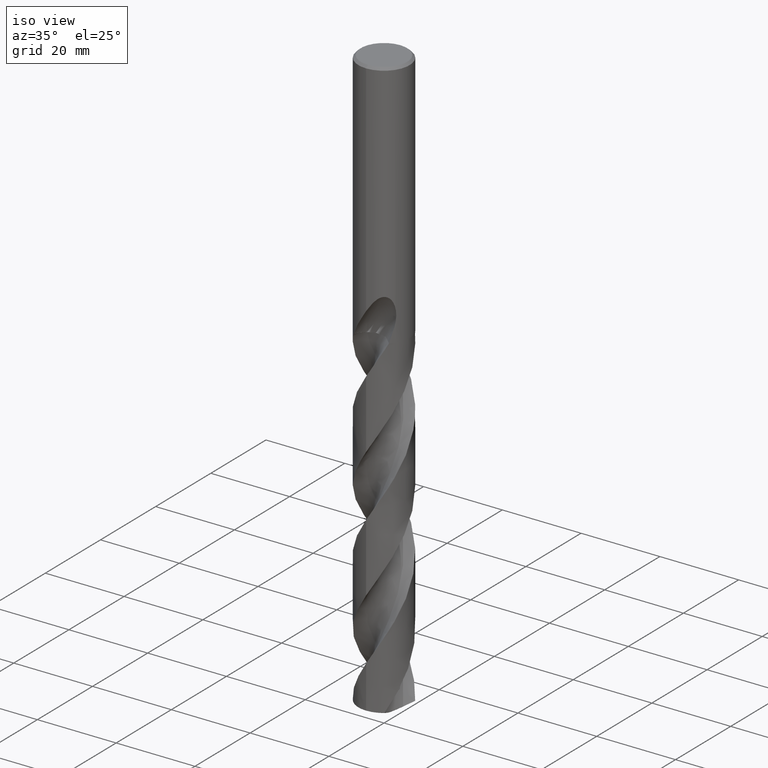
[diagram: clean part render]
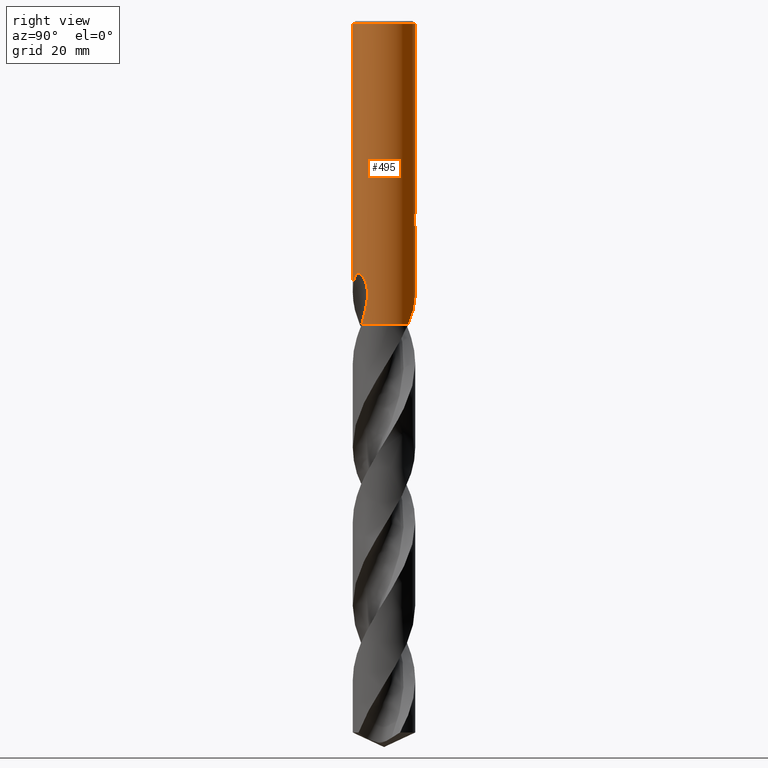
[diagram: tour spotlight — one face highlighted and labeled with its STEP entity id]
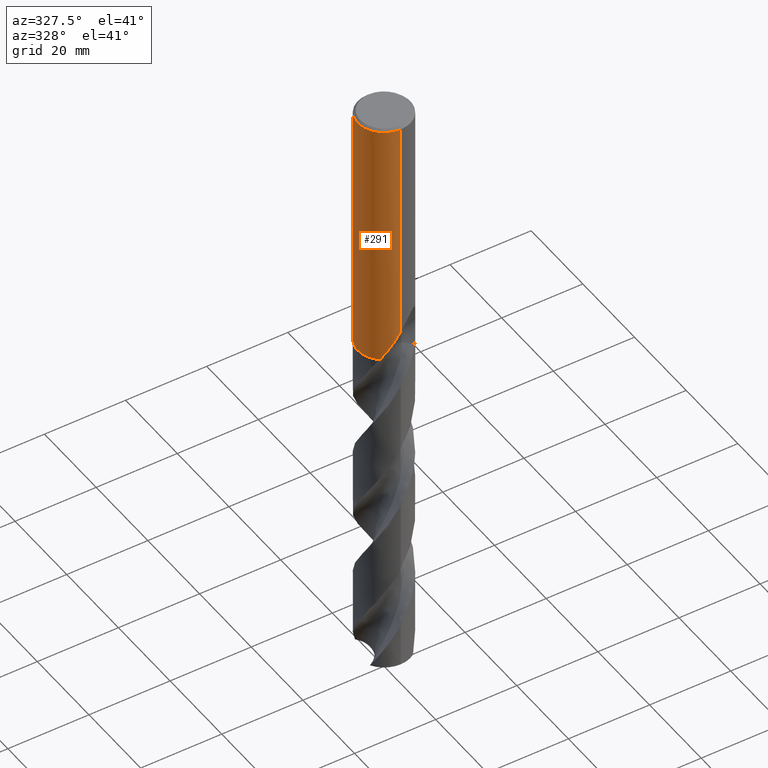
[diagram: tour spotlight — one face highlighted and labeled with its STEP entity id]
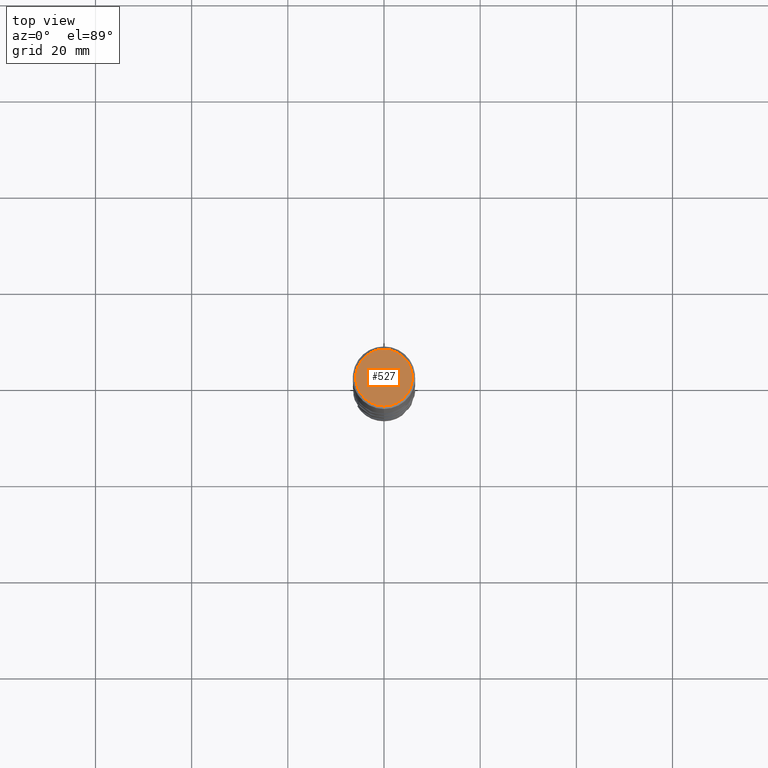
[diagram: tour spotlight — one face highlighted and labeled with its STEP entity id]
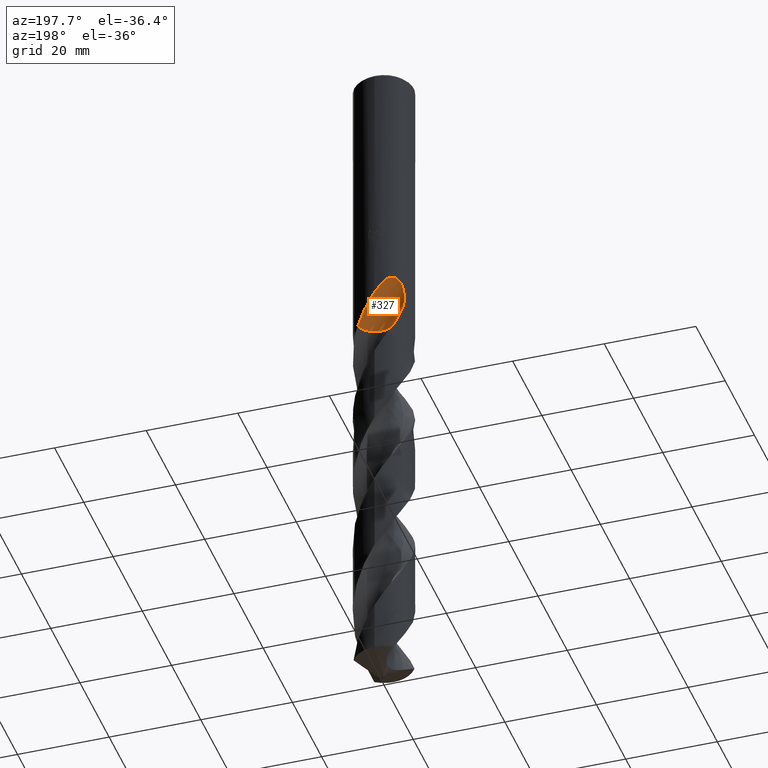
[diagram: tour spotlight — one face highlighted and labeled with its STEP entity id]
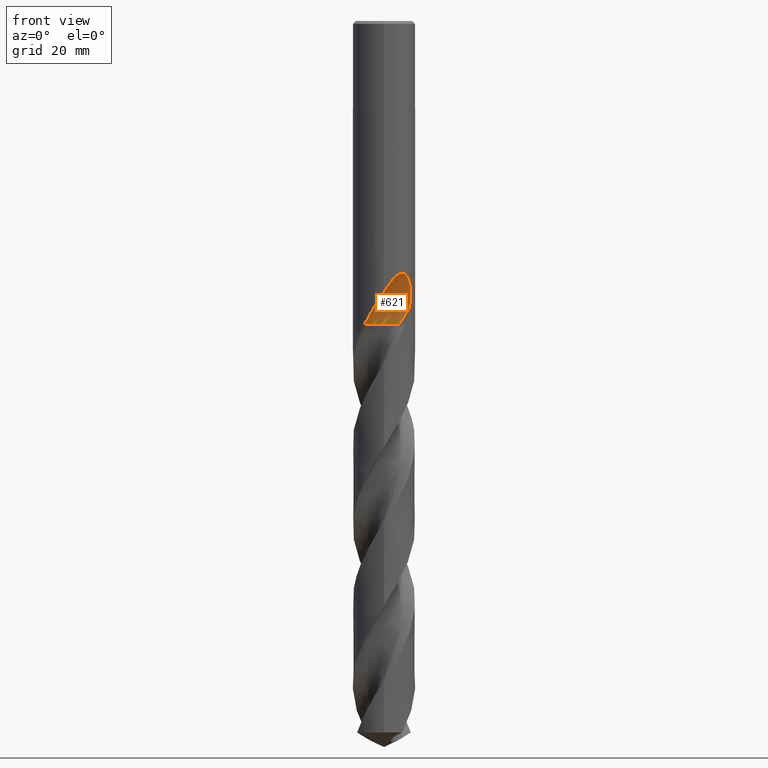
[diagram: tour spotlight — one face highlighted and labeled with its STEP entity id]
A machine part: a face-by-face anatomy tour. The part has 42 B-rep faces; the first image is the clean iso view, then the 5 largest visible faces are spotlighted one at a time (largest first), each with its STEP entity span.

Face 1 — right view, entity #495. In plain terms, the highlighted cylindrical surface (edge-blend (fillet) strip) has radius 6.5 mm, axis along (-0, -0, 1).
Definition (entity closure, byte-faithful):
#289=EDGE_CURVE('',#379,#533,#767,.T.);
#293=EDGE_CURVE('',#543,#617,#772,.T.);
#343=VERTEX_POINT('',#828);
#345=VERTEX_POINT('',#830);
#379=VERTEX_POINT('',#867);
#391=EDGE_CURVE('',#619,#343,#879,.T.);
#397=EDGE_CURVE('',#513,#533,#886,.T.);
#403=EDGE_CURVE('',#379,#659,#892,.T.);
#409=EDGE_CURVE('',#679,#465,#898,.T.);
#427=EDGE_CURVE('',#573,#465,#919,.T.);
#435=EDGE_CURVE('',#659,#581,#928,.T.);
#465=VERTEX_POINT('',#961);
#469=VERTEX_POINT('',#965);
#477=VERTEX_POINT('',#973);
#495=ADVANCED_FACE('',(#995),#996,.T.);
#513=VERTEX_POINT('',#1015);
#525=EDGE_CURVE('',#469,#619,#1027,.T.);
#533=VERTEX_POINT('',#1036);
#543=VERTEX_POINT('',#1046);
#555=EDGE_CURVE('',#617,#477,#1058,.T.);
#569=EDGE_CURVE('',#477,#469,#1074,.T.);
#573=VERTEX_POINT('',#1078);
#575=EDGE_CURVE('',#345,#543,#1080,.T.);
#581=VERTEX_POINT('',#1087);
#615=EDGE_CURVE('',#573,#345,#1124,.T.);
#617=VERTEX_POINT('',#1126);
#619=VERTEX_POINT('',#1128);
#625=EDGE_CURVE('',#513,#343,#1135,.T.);
#647=EDGE_CURVE('',#679,#581,#1159,.T.);
#659=VERTEX_POINT('',#1172);
#679=VERTEX_POINT('',#1193);
#767=LINE('',#1466,#1467);
#772=LINE('',#1473,#1474);
#828=CARTESIAN_POINT('',(-9.11185746623598E-016,6.5,-41.0232688117743));
#830=CARTESIAN_POINT('',(0.29010312703583,6.49352294026009,-42.9998328990228));
#867=CARTESIAN_POINT('',(1.99302628166222E-012,-6.5,-56.2956537273547));
#879=B_SPLINE_CURVE_WITH_KNOTS('',3,(#3031,#3032,#3033,#3034,#3035,#3036,#3037,#3038,#3039,#3040,#3041,#3042,#3043,#3044,#3045,#3046,#3047,#3048,#3049,#3050,#3051,#3052,#3053,#3054,#3055,#3056,#3057),.UNSPECIFIED.,.F.,.F.,(4,2,3,2,2,2,2,2,2,2,2,2,4),(-0.54211042130285,-0.271055210651425,0.0,0.271055210651425,0.54211042130285,0.813503489476229,1.08489655764961,1.3557263789018,1.62655620015399,1.8975522953862,2.1685483906184,2.43954448585061,2.71054058108282),.UNSPECIFIED.);
#886=CIRCLE('',#3871,6.5);
#892=B_SPLINE_CURVE_WITH_KNOTS('',3,(#4037,#4038,#4039,#4040,#4041,#4042,#4043,#4044,#4045,#4046,#4047,#4048,#4049,#4050,#4051,#4052,#4053,#4054,#4055,#4056,#4057,#4058,#4059,#4060,#4061,#4062,#4063,#4064,#4065,#4066),.UNSPECIFIED.,.F.,.F.,(4,2,2,2,2,2,2,2,2,2,2,2,2,2,4),(0.0,3.1809903277017,4.91954110289934,6.49477439006094,8.32513545678344,10.5235474923492,12.4266998005783,13.2899860023691,13.9209877630368,14.5181294194268,15.2756834481811,16.3840533178416,17.9597049006615,18.9904870322061,20.0737581101821),.UNSPECIFIED.);
#898=B_SPLINE_CURVE_WITH_KNOTS('',3,(#4073,#4074,#4075,#4076,#4077,#4078,#4079,#4080,#4081,#4082,#4083,#4084,#4085,#4086,#4087,#4088,#4089,#4090,#4091,#4092,#4093,#4094,#4095,#4096,#4097,#4098,#4099,#4100,#4101,#4102),.UNSPECIFIED.,.F.,.F.,(4,2,2,2,2,2,2,2,2,2,2,2,2,2,4),(0.0,3.18099032770167,4.91954110289936,6.49477439006156,8.32513545678518,10.5235474923522,12.4266998005826,13.2899860023737,13.9209877630417,14.518129419432,15.2756834481869,16.3840533178474,17.9597049006645,18.9904870322067,20.0737581101801),.UNSPECIFIED.);
#919=LINE('',#4930,#4931);
#928=B_SPLINE_CURVE_WITH_KNOTS('',3,(#4941,#4942,#4943,#4944),.UNSPECIFIED.,.F.,.F.,(4,4),(0.0,3.7304180468819),.UNSPECIFIED.);
#961=CARTESIAN_POINT('',(-1.98636494351447E-012,6.5,-56.2956537273547));
#965=CARTESIAN_POINT('',(1.33721006514658,6.36096448989229,-40.5150484364821));
#973=CARTESIAN_POINT('',(1.33721006514658,6.36096448989229,-42.2901657003257));
#995=FACE_OUTER_BOUND('',#5640,.T.);
#996=CYLINDRICAL_SURFACE('',#5641,6.5);
#1015=CARTESIAN_POINT('',(0.0,6.5,-0.600000000000001));
#1027=B_SPLINE_CURVE_WITH_KNOTS('',3,(#5823,#5824,#5825,#5826,#5827,#5828,#5829,#5830,#5831,#5832),.UNSPECIFIED.,.F.,.F.,(4,2,2,2,4),(0.616344110712948,0.924516166069422,1.2326882214259,1.54070376264946,1.84871930387303),.UNSPECIFIED.);
#1036=CARTESIAN_POINT('',(7.95994129984545E-016,-6.5,-0.600000000000001));
#1046=CARTESIAN_POINT('',(0.873560781758957,6.44103187079312,-41.3198931596091));
#1058=B_SPLINE_CURVE_WITH_KNOTS('',3,(#6175,#6176,#6177,#6178,#6179,#6180,#6181,#6182,#6183,#6184),.UNSPECIFIED.,.F.,.F.,(4,2,2,2,4),(8.01269570169445,8.32071123244799,8.62872676320153,8.93689880790409,9.24507085260666),.UNSPECIFIED.);
#1074=LINE('',#6208,#6209);
#1078=CARTESIAN_POINT('',(-2.04373622210448E-015,6.5,-43.0310253601033));
#1080=ELLIPSE('',#6218,19.8119647269035,6.5);
#1087=CARTESIAN_POINT('',(4.51932277904949,-4.67180068268804,-63.2));
#1124=B_SPLINE_CURVE_WITH_KNOTS('',3,(#6454,#6455,#6456,#6457,#6458,#6459,#6460,#6461,#6462,#6463,#6464,#6465,#6466,#6467,#6468,#6469),.UNSPECIFIED.,.F.,.F.,(4,2,2,2,2,2,2,4),(5.85532773425054,6.16353434805732,6.47181707900603,6.78009980995473,7.08838254090343,7.39666527185213,7.70468082950864,8.01269638716514),.UNSPECIFIED.);
#1126=CARTESIAN_POINT('',(0.873560781758956,6.44103187079312,-42.7587351791531));
#1128=CARTESIAN_POINT('',(0.799431726384364,6.45065182092865,-40.000000276873));
#1135=LINE('',#6496,#6497);
#1159=CIRCLE('',#6697,6.5);
#1172=CARTESIAN_POINT('',(5.28867406144991,-3.77887902316904,-59.6457285140225));
#1193=CARTESIAN_POINT('',(4.1395188834721,5.01142528761808,-63.2));
#1466=CARTESIAN_POINT('',(7.95994129984545E-016,-6.5,-54.1));
#1467=VECTOR('',#7091,1.0);
#1473=CARTESIAN_POINT('',(0.873560781758957,6.44103187079312,-42.0393141693811));
#1474=VECTOR('',#7111,1.0);
#3031=CARTESIAN_POINT('',(0.665009948651651,6.4658921865582,-39.8134834270877));
#3032=CARTESIAN_POINT('',(0.728709726292574,6.45934073400751,-39.8772239413302));
#3033=CARTESIAN_POINT('',(0.783978164406718,6.45265410678404,-39.9579597688487));
#3034=CARTESIAN_POINT('',(0.857326696044928,6.4433188442987,-40.13498879339));
#3035=CARTESIAN_POINT('',(0.875400981188567,6.44078202721798,-40.231290275703));
#3036=CARTESIAN_POINT('',(0.875400981188567,6.44078202721798,-40.3216420125868));
#3037=CARTESIAN_POINT('',(0.875400981188567,6.44078202721798,-40.4119937494706));
#3038=CARTESIAN_POINT('',(0.857326696044926,6.4433188442987,-40.5082952317835));
#3039=CARTESIAN_POINT('',(0.783978164406714,6.45265410678405,-40.6853242563249));
#3040=CARTESIAN_POINT('',(0.728709726292575,6.45934073400751,-40.7660600838434));
#3041=CARTESIAN_POINT('',(0.601230772245541,6.47245180518516,-40.8936205618698));
#3042=CARTESIAN_POINT('',(0.520453950443569,6.47973811881178,-40.9489615363319));
#3043=CARTESIAN_POINT('',(0.343325516131627,6.49153340841804,-41.0224124046868));
#3044=CARTESIAN_POINT('',(0.246964513397228,6.49593660135622,-41.0405166027747));
#3045=CARTESIAN_POINT('',(0.0662759631326997,6.50028902145877,-41.0405166027747));
#3046=CARTESIAN_POINT('',(-0.0299983134455207,6.50053398901413,-41.0224795578137));
#3047=CARTESIAN_POINT('',(-0.207079459605581,6.49730406696753,-40.9491414268958));
#3048=CARTESIAN_POINT('',(-0.287889157188533,6.49393581801358,-40.8938425115824));
#3049=CARTESIAN_POINT('',(-0.415531205717859,6.48701945479233,-40.7662527322646));
#3050=CARTESIAN_POINT('',(-0.470872911994409,6.48302662438309,-40.6854309991359));
#3051=CARTESIAN_POINT('',(-0.544282685037442,6.47727657862164,-40.5082939470613));
#3052=CARTESIAN_POINT('',(-0.562348199187247,6.4756285025371,-40.4119740443309));
#3053=CARTESIAN_POINT('',(-0.562348199187247,6.4756285025371,-40.2313099808427));
#3054=CARTESIAN_POINT('',(-0.544282685037442,6.47727657862164,-40.1349900781123));
#3055=CARTESIAN_POINT('',(-0.470872911994409,6.48302662438309,-39.9578530260376));
#3056=CARTESIAN_POINT('',(-0.415531205717859,6.48701945479233,-39.877031292909));
#3057=CARTESIAN_POINT('',(-0.351690596240694,6.49047869763979,-39.8132168260577));
#3871=AXIS2_PLACEMENT_3D('',#7251,#7252,#7253);
#4037=CARTESIAN_POINT('',(-4.1395188834721,-5.01142528761807,-63.2));
#4038=CARTESIAN_POINT('',(-3.710939633576,-5.36543872614874,-62.297063539087));
#4039=CARTESIAN_POINT('',(-3.21836817802651,-5.68003057835878,-61.4550521977624));
#4040=CARTESIAN_POINT('',(-2.35947274064264,-6.06577304764526,-60.0481972438205));
#4041=CARTESIAN_POINT('',(-2.05022107642267,-6.1767994809102,-59.5529036657231));
#4042=CARTESIAN_POINT('',(-1.45146878546433,-6.3427494641817,-58.5940091759847));
#4043=CARTESIAN_POINT('',(-1.16463030583807,-6.40137932375164,-58.1348599729351));
#4044=CARTESIAN_POINT('',(-0.543691685916853,-6.48597261458285,-57.1452006731947));
#4045=CARTESIAN_POINT('',(-0.204391774594261,-6.50580165423901,-56.6069260604781));
#4046=CARTESIAN_POINT('',(0.549067501043529,-6.48981063316087,-55.4555124164235));
#4047=CARTESIAN_POINT('',(0.995820184753446,-6.44070008926964,-54.8003467560075));
#4048=CARTESIAN_POINT('',(1.85687690708439,-6.24260250905468,-53.7208203866681));
#4049=CARTESIAN_POINT('',(2.33287475104792,-6.09187146380076,-53.194524331624));
#4050=CARTESIAN_POINT('',(3.05352277581435,-5.7435516742493,-52.7013938945918));
#4051=CARTESIAN_POINT('',(3.29221786463922,-5.61196846664082,-52.5794492883455));
#4052=CARTESIAN_POINT('',(3.71047511146386,-5.34103532698406,-52.4857924847674));
#4053=CARTESIAN_POINT('',(3.88202985549943,-5.2176477120273,-52.484061499913));
#4054=CARTESIAN_POINT('',(4.20156306436699,-4.96349427750833,-52.5661037370722));
#4055=CARTESIAN_POINT('',(4.34131224901716,-4.8407419994764,-52.6430122148751));
#4056=CARTESIAN_POINT('',(4.62570545946773,-4.5717360011083,-52.883637898744));
#4057=CARTESIAN_POINT('',(4.75727913732758,-4.43232908248179,-53.0612951460687));
#4058=CARTESIAN_POINT('',(5.02678484231789,-4.12792412587944,-53.5477724665437));
#4059=CARTESIAN_POINT('',(5.15560071068614,-3.96215569977283,-53.9085961541457));
#4060=CARTESIAN_POINT('',(5.39782003744107,-3.62931626605978,-54.9181189296788));
#4061=CARTESIAN_POINT('',(5.48537824868719,-3.48755829802703,-55.6370810112657));
#4062=CARTESIAN_POINT('',(5.52867094775428,-3.4183096248535,-56.9675409909747));
#4063=CARTESIAN_POINT('',(5.51846664930011,-3.43522913776718,-57.4972929709121));
#4064=CARTESIAN_POINT('',(5.44647300344412,-3.5483308057084,-58.5724201728284));
#4065=CARTESIAN_POINT('',(5.38220445249631,-3.64797995229338,-59.1137490490913));
#4066=CARTESIAN_POINT('',(5.28867406144991,-3.77887902316904,-59.6457285140225));
#4073=CARTESIAN_POINT('',(4.1395188834721,5.01142528761808,-63.2));
#4074=CARTESIAN_POINT('',(3.710939633576,5.36543872614874,-62.297063539087));
#4075=CARTESIAN_POINT('',(3.21836817802653,5.68003057835878,-61.4550521977624));
#4076=CARTESIAN_POINT('',(2.35947274064261,6.06577304764528,-60.0481972438205));
#4077=CARTESIAN_POINT('',(2.05022107642261,6.17679948091022,-59.552903665723));
#4078=CARTESIAN_POINT('',(1.45146878546427,6.34274946418171,-58.5940091759847));
#4079=CARTESIAN_POINT('',(1.16463030583795,6.40137932375165,-58.1348599729349));
#4080=CARTESIAN_POINT('',(0.543691685916903,6.48597261458283,-57.1452006731948));
#4081=CARTESIAN_POINT('',(0.204391774594284,6.50580165423901,-56.6069260604781));
#4082=CARTESIAN_POINT('',(-0.54906750104354,6.48981063316087,-55.4555124164234));
#4083=CARTESIAN_POINT('',(-0.995820184753451,6.44070008926964,-54.8003467560075));
#4084=CARTESIAN_POINT('',(-1.85687690708442,6.24260250905467,-53.7208203866681));
#4085=CARTESIAN_POINT('',(-2.33287475104792,6.09187146380075,-53.194524331624));
#4086=CARTESIAN_POINT('',(-3.05352277581429,5.74355167424932,-52.7013938945919));
#4087=CARTESIAN_POINT('',(-3.2922178646392,5.61196846664083,-52.5794492883455));
#4088=CARTESIAN_POINT('',(-3.7104751114639,5.34103532698404,-52.4857924847674));
#4089=CARTESIAN_POINT('',(-3.88202985549944,5.21764771202729,-52.484061499913));
#4090=CARTESIAN_POINT('',(-4.201563064367,4.96349427750833,-52.5661037370722));
#4091=CARTESIAN_POINT('',(-4.34131224901716,4.84074199947639,-52.6430122148751));
#4092=CARTESIAN_POINT('',(-4.62570545946773,4.57173600110829,-52.883637898744));
#4093=CARTESIAN_POINT('',(-4.75727913732759,4.43232908248176,-53.0612951460687));
#4094=CARTESIAN_POINT('',(-5.02678484231772,4.12792412587962,-53.5477724665434));
#4095=CARTESIAN_POINT('',(-5.15560071068604,3.96215569977298,-53.9085961541453));
#4096=CARTESIAN_POINT('',(-5.39782003744096,3.62931626605994,-54.9181189296784));
#4097=CARTESIAN_POINT('',(-5.48537824868717,3.48755829802706,-55.6370810112651));
#4098=CARTESIAN_POINT('',(-5.52867094775428,3.41830962485349,-56.9675409909747));
#4099=CARTESIAN_POINT('',(-5.5184666493001,3.43522913776717,-57.4972929709121));
#4100=CARTESIAN_POINT('',(-5.44647300344411,3.5483308057084,-58.5724201728284));
#4101=CARTESIAN_POINT('',(-5.3822044524963,3.64797995229339,-59.1137490490913));
#4102=CARTESIAN_POINT('',(-5.28867406144991,3.77887902316904,-59.6457285140225));
#4930=CARTESIAN_POINT('',(-7.95994129984545E-016,6.5,-54.1));
#4931=VECTOR('',#7288,1.0);
#4941=CARTESIAN_POINT('',(5.28867406150252,-3.77887902309539,-59.6457285140515));
#4942=CARTESIAN_POINT('',(5.07941455452147,-4.07174506086206,-60.8359655720665));
#4943=CARTESIAN_POINT('',(4.82726541506561,-4.37390865686911,-62.0332515341914));
#4944=CARTESIAN_POINT('',(4.51932277904949,-4.67180068268804,-63.2));
#5640=EDGE_LOOP('',(#7363,#7364,#7365,#7366,#7367,#7368,#7369,#7370,#7371,#7372,#7373,#7374,#7375,#7376,#7377));
#5641=AXIS2_PLACEMENT_3D('',#7378,#7379,#7380);
#5823=CARTESIAN_POINT('',(1.47581402211555,6.33024272616202,-40.7781060232488));
#5824=CARTESIAN_POINT('',(1.43418815261168,6.3399472540676,-40.6778456272751));
#5825=CARTESIAN_POINT('',(1.38242091432189,6.35158520431181,-40.5818267913258));
#5826=CARTESIAN_POINT('',(1.26295439993568,6.37641500965412,-40.4043631628891));
#5827=CARTESIAN_POINT('',(1.19524628781874,6.3895808554363,-40.3229206806908));
#5828=CARTESIAN_POINT('',(1.05109906548503,6.41486886155944,-40.1788042117664));
#5829=CARTESIAN_POINT('',(0.969673250882074,6.42788863482793,-40.111131259145));
#5830=CARTESIAN_POINT('',(0.792233398880047,6.45216124696694,-39.991718140152));
#5831=CARTESIAN_POINT('',(0.696221663732805,6.46339002425831,-39.9399696632591));
#5832=CARTESIAN_POINT('',(0.595971942858856,6.47262060091004,-39.898361194347));
#6175=CARTESIAN_POINT('',(0.595971965097509,6.4726205988624,-42.9068529263742));
#6176=CARTESIAN_POINT('',(0.696221682542838,6.46339002217901,-42.8652444588747));
#6177=CARTESIAN_POINT('',(0.792233414403679,6.45216124501865,-42.8134959837401));
#6178=CARTESIAN_POINT('',(0.969673260332412,6.42788863335994,-42.6940828688028));
#6179=CARTESIAN_POINT('',(1.05109907214846,6.41486886043917,-42.6264099184791));
#6180=CARTESIAN_POINT('',(1.19524628950879,6.38958085509109,-42.4822934544795));
#6181=CARTESIAN_POINT('',(1.26295439927459,6.37641500976475,-42.4008509750874));
#6182=CARTESIAN_POINT('',(1.38242090951475,6.35158520533769,-42.2233873527647));
#6183=CARTESIAN_POINT('',(1.43418814600924,6.33994725555108,-42.1273685201235));
#6184=CARTESIAN_POINT('',(1.47581401406897,6.33024272803797,-42.0271081276057));
#6208=CARTESIAN_POINT('',(1.33721006514658,6.36096448989229,-41.4026070684039));
#6209=VECTOR('',#7431,1.0);
#6218=AXIS2_PLACEMENT_3D('',#7433,#7434,#7435);
#6454=CARTESIAN_POINT('',(-1.37950770214519,6.35192557416427,-42.311977853661));
#6455=CARTESIAN_POINT('',(-1.3198120832303,6.36489023582954,-42.4006738357836));
#6456=CARTESIAN_POINT('',(-1.25215515178726,6.37867321946998,-42.4820783377272));
#6457=CARTESIAN_POINT('',(-1.10808556116195,6.40527232864873,-42.6261797974425));
#6458=CARTESIAN_POINT('',(-1.02667285990483,6.41903263531005,-42.6938711892567));
#6459=CARTESIAN_POINT('',(-0.849249329365212,6.44490595051211,-42.8133273500683));
#6460=CARTESIAN_POINT('',(-0.753240671502784,6.45699490652302,-42.8651005524199));
#6461=CARTESIAN_POINT('',(-0.552718842922963,6.47724143532109,-42.9483710397602));
#6462=CARTESIAN_POINT('',(-0.448038129319197,6.48539911268241,-42.979934259357));
#6463=CARTESIAN_POINT('',(-0.237240962078234,6.49652649821576,-43.0213901577397));
#6464=CARTESIAN_POINT('',(-0.131122101406942,6.49948973375692,-43.0312723335086));
#6465=CARTESIAN_POINT('',(0.0743087057987416,6.50038612126611,-43.0312723335086));
#6466=CARTESIAN_POINT('',(0.180360919586034,6.49835291859509,-43.0214069746895));
#6467=CARTESIAN_POINT('',(0.391066679248296,6.48908218227415,-42.9799966346832));
#6468=CARTESIAN_POINT('',(0.495722511671418,6.48185115549095,-42.9484618321907));
#6469=CARTESIAN_POINT('',(0.595972237509441,6.47262057377983,-42.9068533611083));
#6496=CARTESIAN_POINT('',(-7.95994129984545E-016,6.5,-54.1));
#6497=VECTOR('',#7505,1.0);
#6697=AXIS2_PLACEMENT_3D('',#7544,#7545,#7546);
#7091=DIRECTION('',(-0.0,-0.0,1.0));
#7111=DIRECTION('',(0.0,0.0,-1.0));
#7251=CARTESIAN_POINT('',(0.0,0.0,-0.600000000000001));
#7252=DIRECTION('',(0.0,0.0,-1.0));
#7253=DIRECTION('',(0.0,1.0,0.0));
#7288=DIRECTION('',(0.0,0.0,-1.0));
#7363=ORIENTED_EDGE('',*,*,#625,.F.);
#7364=ORIENTED_EDGE('',*,*,#397,.T.);
#7365=ORIENTED_EDGE('',*,*,#289,.F.);
#7366=ORIENTED_EDGE('',*,*,#403,.T.);
#7367=ORIENTED_EDGE('',*,*,#435,.T.);
#7368=ORIENTED_EDGE('',*,*,#647,.F.);
#7369=ORIENTED_EDGE('',*,*,#409,.T.);
#7370=ORIENTED_EDGE('',*,*,#427,.F.);
#7371=ORIENTED_EDGE('',*,*,#615,.T.);
#7372=ORIENTED_EDGE('',*,*,#575,.T.);
#7373=ORIENTED_EDGE('',*,*,#293,.T.);
#7374=ORIENTED_EDGE('',*,*,#555,.T.);
#7375=ORIENTED_EDGE('',*,*,#569,.T.);
#7376=ORIENTED_EDGE('',*,*,#525,.T.);
#7377=ORIENTED_EDGE('',*,*,#391,.T.);
#7378=CARTESIAN_POINT('',(0.0,0.0,-54.1));
#7379=DIRECTION('',(-0.0,-0.0,1.0));
#7380=DIRECTION('',(0.0,1.0,0.0));
#7431=DIRECTION('',(-0.0,-0.0,1.0));
#7433=CARTESIAN_POINT('',(0.0,0.0,-43.8351219173269));
#7434=DIRECTION('',(0.944648353914092,0.0,-0.328084573619969));
#7435=DIRECTION('',(0.328084573619969,-0.0,0.944648353914092));
#7505=DIRECTION('',(0.0,0.0,-1.0));
#7544=CARTESIAN_POINT('',(0.0,0.0,-63.2));
#7545=DIRECTION('',(0.0,0.0,-1.0));
#7546=DIRECTION('',(0.0,1.0,0.0));

Face 2 — auxiliary view, entity #291. In plain terms, the highlighted cylindrical surface (edge-blend (fillet) strip) has radius 6.5 mm, axis along (-0, -0, 1).
Definition (entity closure, byte-faithful):
#285=VERTEX_POINT('',#763);
#289=EDGE_CURVE('',#379,#533,#767,.T.);
#291=ADVANCED_FACE('',(#769),#770,.T.);
#319=EDGE_CURVE('',#609,#553,#799,.T.);
#325=EDGE_CURVE('',#431,#505,#806,.T.);
#333=EDGE_CURVE('',#343,#585,#816,.T.);
#343=VERTEX_POINT('',#828);
#377=VERTEX_POINT('',#865);
#379=VERTEX_POINT('',#867);
#407=VERTEX_POINT('',#896);
#427=EDGE_CURVE('',#573,#465,#919,.T.);
#431=VERTEX_POINT('',#923);
#465=VERTEX_POINT('',#961);
#467=EDGE_CURVE('',#465,#609,#963,.T.);
#501=VERTEX_POINT('',#1002);
#505=VERTEX_POINT('',#1006);
#513=VERTEX_POINT('',#1015);
#519=EDGE_CURVE('',#377,#379,#1021,.T.);
#533=VERTEX_POINT('',#1036);
#553=VERTEX_POINT('',#1056);
#573=VERTEX_POINT('',#1078);
#585=VERTEX_POINT('',#1092);
#599=EDGE_CURVE('',#407,#501,#1106,.T.);
#609=VERTEX_POINT('',#1117);
#623=EDGE_CURVE('',#505,#407,#1133,.T.);
#625=EDGE_CURVE('',#513,#343,#1135,.T.);
#639=EDGE_CURVE('',#501,#285,#1151,.T.);
#641=EDGE_CURVE('',#285,#573,#1153,.T.);
#661=EDGE_CURVE('',#533,#513,#1174,.T.);
#705=EDGE_CURVE('',#585,#431,#1221,.T.);
#711=EDGE_CURVE('',#377,#553,#1228,.T.);
#763=CARTESIAN_POINT('',(-1.337052752443,6.36099755833821,-42.3720803908795));
#767=LINE('',#1466,#1467);
#769=FACE_OUTER_BOUND('',#1469,.T.);
#770=CYLINDRICAL_SURFACE('',#1470,6.5);
#799=B_SPLINE_CURVE_WITH_KNOTS('',3,(#1715,#1716,#1717,#1718),.UNSPECIFIED.,.F.,.F.,(4,4),(0.0,3.73041804688222),.UNSPECIFIED.);
#806=CIRCLE('',#1878,6.5);
#816=B_SPLINE_CURVE_WITH_KNOTS('',3,(#1892,#1893,#1894,#1895,#1896,#1897,#1898,#1899,#1900,#1901,#1902,#1903,#1904,#1905,#1906,#1907,#1908,#1909,#1910,#1911,#1912,#1913,#1914,#1915,#1916,#1917,#1918),.UNSPECIFIED.,.F.,.F.,(4,2,3,2,2,2,2,2,2,2,2,2,4),(-0.54211042130285,-0.271055210651425,0.0,0.271055210651425,0.54211042130285,0.813503489476229,1.08489655764961,1.3557263789018,1.62655620015399,1.8975522953862,2.1685483906184,2.43954448585061,2.71054058108282),.UNSPECIFIED.);
#828=CARTESIAN_POINT('',(-9.11185746623598E-016,6.5,-41.0232688117743));
#865=CARTESIAN_POINT('',(-4.1395188834721,-5.01142528761808,-63.2));
#867=CARTESIAN_POINT('',(1.99302628166222E-012,-6.5,-56.2956537273547));
#896=CARTESIAN_POINT('',(-3.83043648745823E-016,6.5,-41.5000801551881));
#919=LINE('',#4930,#4931);
#923=CARTESIAN_POINT('',(-0.562333990228013,6.47562973643755,-40.3171221986971));
#961=CARTESIAN_POINT('',(-1.98636494351447E-012,6.5,-56.2956537273547));
#963=B_SPLINE_CURVE_WITH_KNOTS('',3,(#5004,#5005,#5006,#5007,#5008,#5009,#5010,#5011,#5012,#5013,#5014,#5015,#5016,#5017,#5018,#5019,#5020,#5021,#5022,#5023,#5024,#5025,#5026,#5027,#5028,#5029,#5030,#5031,#5032,#5033),.UNSPECIFIED.,.F.,.F.,(4,2,2,2,2,2,2,2,2,2,2,2,2,2,4),(0.0,3.18099032770167,4.91954110289936,6.49477439006156,8.32513545678518,10.5235474923522,12.4266998005826,13.2899860023737,13.9209877630417,14.518129419432,15.2756834481869,16.3840533178474,17.9597049006645,18.9904870322067,20.0737581101801),.UNSPECIFIED.);
#1002=CARTESIAN_POINT('',(-9.74620776171345E-016,6.5,-41.7128911336578));
#1006=CARTESIAN_POINT('',(-1.0350734039088,6.41705719535993,-40.3171221986971));
#1015=CARTESIAN_POINT('',(0.0,6.5,-0.600000000000001));
#1021=B_SPLINE_CURVE_WITH_KNOTS('',3,(#5712,#5713,#5714,#5715,#5716,#5717,#5718,#5719,#5720,#5721,#5722,#5723,#5724,#5725,#5726,#5727,#5728,#5729,#5730,#5731,#5732,#5733,#5734,#5735,#5736,#5737,#5738,#5739,#5740,#5741),.UNSPECIFIED.,.F.,.F.,(4,2,2,2,2,2,2,2,2,2,2,2,2,2,4),(0.0,3.1809903277017,4.91954110289934,6.49477439006094,8.32513545678344,10.5235474923492,12.4266998005783,13.2899860023691,13.9209877630368,14.5181294194268,15.2756834481811,16.3840533178416,17.9597049006615,18.9904870322061,20.0737581101821),.UNSPECIFIED.);
#1036=CARTESIAN_POINT('',(7.95994129984545E-016,-6.5,-0.600000000000001));
#1056=CARTESIAN_POINT('',(-4.51932277904948,4.67180068268804,-63.2));
#1078=CARTESIAN_POINT('',(-2.04373622210448E-015,6.5,-43.0310253601033));
#1092=CARTESIAN_POINT('',(-0.486378944383043,6.481777188585,-40.6432837483006));
#1106=LINE('',#6275,#6276);
#1117=CARTESIAN_POINT('',(-5.28867406144991,3.77887902316904,-59.6457285140225));
#1133=B_SPLINE_CURVE_WITH_KNOTS('',3,(#6480,#6481,#6482,#6483,#6484,#6485,#6486,#6487,#6488,#6489,#6490,#6491,#6492,#6493),.UNSPECIFIED.,.F.,.F.,(4,2,2,2,2,2,4),(3.12758704882635,3.5742258103908,4.02086457195526,4.46750333351971,4.91361049915401,5.35971766478831,5.80727900250839),.UNSPECIFIED.);
#1135=LINE('',#6496,#6497);
#1151=ELLIPSE('',#6670,7.24703480827859,6.5);
#1153=B_SPLINE_CURVE_WITH_KNOTS('',3,(#6673,#6674,#6675,#6676,#6677,#6678,#6679,#6680,#6681,#6682,#6683,#6684,#6685,#6686,#6687,#6688),.UNSPECIFIED.,.F.,.F.,(4,2,2,2,2,2,2,4),(5.85532773425054,6.16353434805732,6.47181707900603,6.78009980995473,7.08838254090343,7.39666527185213,7.70468082950864,8.01269638716514),.UNSPECIFIED.);
#1174=CIRCLE('',#6715,6.5);
#1221=B_SPLINE_CURVE_WITH_KNOTS('',3,(#7020,#7021,#7022,#7023,#7024,#7025,#7026,#7027,#7028,#7029,#7030,#7031,#7032,#7033,#7034,#7035,#7036,#7037,#7038,#7039,#7040,#7041,#7042,#7043,#7044,#7045,#7046),.UNSPECIFIED.,.F.,.F.,(4,2,3,2,2,2,2,2,2,2,2,2,4),(-0.54211042130285,-0.271055210651425,0.0,0.271055210651425,0.54211042130285,0.813503489476229,1.08489655764961,1.3557263789018,1.62655620015399,1.8975522953862,2.1685483906184,2.43954448585061,2.71054058108282),.UNSPECIFIED.);
#1228=CIRCLE('',#7054,6.5);
#1466=CARTESIAN_POINT('',(7.95994129984545E-016,-6.5,-54.1));
#1467=VECTOR('',#7091,1.0);
#1469=EDGE_LOOP('',(#7093,#7094,#7095,#7096,#7097,#7098,#7099,#7100,#7101,#7102,#7103,#7104,#7105,#7106,#7107));
#1470=AXIS2_PLACEMENT_3D('',#7108,#7109,#7110);
#1715=CARTESIAN_POINT('',(-5.28867406150252,3.77887902309539,-59.6457285140515));
#1716=CARTESIAN_POINT('',(-5.07941455452145,4.07174506086208,-60.8359655720666));
#1717=CARTESIAN_POINT('',(-4.8272654150656,4.37390865686911,-62.0332515341914));
#1718=CARTESIAN_POINT('',(-4.51932277904949,4.67180068268804,-63.2));
#1878=AXIS2_PLACEMENT_3D('',#7135,#7136,#7137);
#1892=CARTESIAN_POINT('',(0.665009948651651,6.4658921865582,-39.8134834270877));
#1893=CARTESIAN_POINT('',(0.728709726292574,6.45934073400751,-39.8772239413302));
#1894=CARTESIAN_POINT('',(0.783978164406718,6.45265410678404,-39.9579597688487));
#1895=CARTESIAN_POINT('',(0.857326696044928,6.4433188442987,-40.13498879339));
#1896=CARTESIAN_POINT('',(0.875400981188567,6.44078202721798,-40.231290275703));
#1897=CARTESIAN_POINT('',(0.875400981188567,6.44078202721798,-40.3216420125868));
#1898=CARTESIAN_POINT('',(0.875400981188567,6.44078202721798,-40.4119937494706));
#1899=CARTESIAN_POINT('',(0.857326696044926,6.4433188442987,-40.5082952317835));
#1900=CARTESIAN_POINT('',(0.783978164406714,6.45265410678405,-40.6853242563249));
#1901=CARTESIAN_POINT('',(0.728709726292575,6.45934073400751,-40.7660600838434));
#1902=CARTESIAN_POINT('',(0.601230772245541,6.47245180518516,-40.8936205618698));
#1903=CARTESIAN_POINT('',(0.520453950443569,6.47973811881178,-40.9489615363319));
#1904=CARTESIAN_POINT('',(0.343325516131627,6.49153340841804,-41.0224124046868));
#1905=CARTESIAN_POINT('',(0.246964513397228,6.49593660135622,-41.0405166027747));
#1906=CARTESIAN_POINT('',(0.0662759631326997,6.50028902145877,-41.0405166027747));
#1907=CARTESIAN_POINT('',(-0.0299983134455207,6.50053398901413,-41.0224795578137));
#1908=CARTESIAN_POINT('',(-0.207079459605581,6.49730406696753,-40.9491414268958));
#1909=CARTESIAN_POINT('',(-0.287889157188533,6.49393581801358,-40.8938425115824));
#1910=CARTESIAN_POINT('',(-0.415531205717859,6.48701945479233,-40.7662527322646));
#1911=CARTESIAN_POINT('',(-0.470872911994409,6.48302662438309,-40.6854309991359));
#1912=CARTESIAN_POINT('',(-0.544282685037442,6.47727657862164,-40.5082939470613));
#1913=CARTESIAN_POINT('',(-0.562348199187247,6.4756285025371,-40.4119740443309));
#1914=CARTESIAN_POINT('',(-0.562348199187247,6.4756285025371,-40.2313099808427));
#1915=CARTESIAN_POINT('',(-0.544282685037442,6.47727657862164,-40.1349900781123));
#1916=CARTESIAN_POINT('',(-0.470872911994409,6.48302662438309,-39.9578530260376));
#1917=CARTESIAN_POINT('',(-0.415531205717859,6.48701945479233,-39.877031292909));
#1918=CARTESIAN_POINT('',(-0.351690596240694,6.49047869763979,-39.8132168260577));
#4930=CARTESIAN_POINT('',(-7.95994129984545E-016,6.5,-54.1));
#4931=VECTOR('',#7288,1.0);
#5004=CARTESIAN_POINT('',(4.1395188834721,5.01142528761808,-63.2));
#5005=CARTESIAN_POINT('',(3.710939633576,5.36543872614874,-62.297063539087));
#5006=CARTESIAN_POINT('',(3.21836817802653,5.68003057835878,-61.4550521977624));
#5007=CARTESIAN_POINT('',(2.35947274064261,6.06577304764528,-60.0481972438205));
#5008=CARTESIAN_POINT('',(2.05022107642261,6.17679948091022,-59.552903665723));
#5009=CARTESIAN_POINT('',(1.45146878546427,6.34274946418171,-58.5940091759847));
#5010=CARTESIAN_POINT('',(1.16463030583795,6.40137932375165,-58.1348599729349));
#5011=CARTESIAN_POINT('',(0.543691685916903,6.48597261458283,-57.1452006731948));
#5012=CARTESIAN_POINT('',(0.204391774594284,6.50580165423901,-56.6069260604781));
#5013=CARTESIAN_POINT('',(-0.54906750104354,6.48981063316087,-55.4555124164234));
#5014=CARTESIAN_POINT('',(-0.995820184753451,6.44070008926964,-54.8003467560075));
#5015=CARTESIAN_POINT('',(-1.85687690708442,6.24260250905467,-53.7208203866681));
#5016=CARTESIAN_POINT('',(-2.33287475104792,6.09187146380075,-53.194524331624));
#5017=CARTESIAN_POINT('',(-3.05352277581429,5.74355167424932,-52.7013938945919));
#5018=CARTESIAN_POINT('',(-3.2922178646392,5.61196846664083,-52.5794492883455));
#5019=CARTESIAN_POINT('',(-3.7104751114639,5.34103532698404,-52.4857924847674));
#5020=CARTESIAN_POINT('',(-3.88202985549944,5.21764771202729,-52.484061499913));
#5021=CARTESIAN_POINT('',(-4.201563064367,4.96349427750833,-52.5661037370722));
#5022=CARTESIAN_POINT('',(-4.34131224901716,4.84074199947639,-52.6430122148751));
#5023=CARTESIAN_POINT('',(-4.62570545946773,4.57173600110829,-52.883637898744));
#5024=CARTESIAN_POINT('',(-4.75727913732759,4.43232908248176,-53.0612951460687));
#5025=CARTESIAN_POINT('',(-5.02678484231772,4.12792412587962,-53.5477724665434));
#5026=CARTESIAN_POINT('',(-5.15560071068604,3.96215569977298,-53.9085961541453));
#5027=CARTESIAN_POINT('',(-5.39782003744096,3.62931626605994,-54.9181189296784));
#5028=CARTESIAN_POINT('',(-5.48537824868717,3.48755829802706,-55.6370810112651));
#5029=CARTESIAN_POINT('',(-5.52867094775428,3.41830962485349,-56.9675409909747));
#5030=CARTESIAN_POINT('',(-5.5184666493001,3.43522913776717,-57.4972929709121));
#5031=CARTESIAN_POINT('',(-5.44647300344411,3.5483308057084,-58.5724201728284));
#5032=CARTESIAN_POINT('',(-5.3822044524963,3.64797995229339,-59.1137490490913));
#5033=CARTESIAN_POINT('',(-5.28867406144991,3.77887902316904,-59.6457285140225));
#5712=CARTESIAN_POINT('',(-4.1395188834721,-5.01142528761807,-63.2));
#5713=CARTESIAN_POINT('',(-3.710939633576,-5.36543872614874,-62.297063539087));
#5714=CARTESIAN_POINT('',(-3.21836817802651,-5.68003057835878,-61.4550521977624));
#5715=CARTESIAN_POINT('',(-2.35947274064264,-6.06577304764526,-60.0481972438205));
#5716=CARTESIAN_POINT('',(-2.05022107642267,-6.1767994809102,-59.5529036657231));
#5717=CARTESIAN_POINT('',(-1.45146878546433,-6.3427494641817,-58.5940091759847));
#5718=CARTESIAN_POINT('',(-1.16463030583807,-6.40137932375164,-58.1348599729351));
#5719=CARTESIAN_POINT('',(-0.543691685916853,-6.48597261458285,-57.1452006731947));
#5720=CARTESIAN_POINT('',(-0.204391774594261,-6.50580165423901,-56.6069260604781));
#5721=CARTESIAN_POINT('',(0.549067501043529,-6.48981063316087,-55.4555124164235));
#5722=CARTESIAN_POINT('',(0.995820184753446,-6.44070008926964,-54.8003467560075));
#5723=CARTESIAN_POINT('',(1.85687690708439,-6.24260250905468,-53.7208203866681));
#5724=CARTESIAN_POINT('',(2.33287475104792,-6.09187146380076,-53.194524331624));
#5725=CARTESIAN_POINT('',(3.05352277581435,-5.7435516742493,-52.7013938945918));
#5726=CARTESIAN_POINT('',(3.29221786463922,-5.61196846664082,-52.5794492883455));
#5727=CARTESIAN_POINT('',(3.71047511146386,-5.34103532698406,-52.4857924847674));
#5728=CARTESIAN_POINT('',(3.88202985549943,-5.2176477120273,-52.484061499913));
#5729=CARTESIAN_POINT('',(4.20156306436699,-4.96349427750833,-52.5661037370722));
#5730=CARTESIAN_POINT('',(4.34131224901716,-4.8407419994764,-52.6430122148751));
#5731=CARTESIAN_POINT('',(4.62570545946773,-4.5717360011083,-52.883637898744));
#5732=CARTESIAN_POINT('',(4.75727913732758,-4.43232908248179,-53.0612951460687));
#5733=CARTESIAN_POINT('',(5.02678484231789,-4.12792412587944,-53.5477724665437));
#5734=CARTESIAN_POINT('',(5.15560071068614,-3.96215569977283,-53.9085961541457));
#5735=CARTESIAN_POINT('',(5.39782003744107,-3.62931626605978,-54.9181189296788));
#5736=CARTESIAN_POINT('',(5.48537824868719,-3.48755829802703,-55.6370810112657));
#5737=CARTESIAN_POINT('',(5.52867094775428,-3.4183096248535,-56.9675409909747));
#5738=CARTESIAN_POINT('',(5.51846664930011,-3.43522913776718,-57.4972929709121));
#5739=CARTESIAN_POINT('',(5.44647300344412,-3.5483308057084,-58.5724201728284));
#5740=CARTESIAN_POINT('',(5.38220445249631,-3.64797995229338,-59.1137490490913));
#5741=CARTESIAN_POINT('',(5.28867406144991,-3.77887902316904,-59.6457285140225));
#6275=CARTESIAN_POINT('',(-7.95994129984545E-016,6.5,-54.1));
#6276=VECTOR('',#7461,1.0);
#6480=CARTESIAN_POINT('',(-0.944841046435404,6.43096224502763,-39.8730494276613));
#6481=CARTESIAN_POINT('',(-1.0052938484201,6.42208048287757,-40.0188021213476));
#6482=CARTESIAN_POINT('',(-1.03510901790186,6.41705145070992,-40.1774222735446));
#6483=CARTESIAN_POINT('',(-1.03510901790186,6.41705145070992,-40.4751814479209));
#6484=CARTESIAN_POINT('',(-1.0052938484201,6.42208048287757,-40.633801600118));
#6485=CARTESIAN_POINT('',(-0.884388244450718,6.4398440071777,-40.9253069874906));
#6486=CARTESIAN_POINT('',(-0.793311574516279,6.45227167124981,-41.0582165475275));
#6487=CARTESIAN_POINT('',(-0.583408809215691,6.47462435992551,-41.2679693036697));
#6488=CARTESIAN_POINT('',(-0.450544824666277,6.48600618092513,-41.3589219180041));
#6489=CARTESIAN_POINT('',(-0.159202884042612,6.49968624311312,-41.4796282964316));
#6490=CARTESIAN_POINT('',(-0.000706107630529057,6.50170069303186,-41.5093686300866));
#6491=CARTESIAN_POINT('',(0.297106208968807,6.49491991445238,-41.5093686300866));
#6492=CARTESIAN_POINT('',(0.455827345702922,6.48564898092132,-41.4794545837242));
#6493=CARTESIAN_POINT('',(0.601559288291168,6.47210370920233,-41.4189557979546));
#6496=CARTESIAN_POINT('',(-7.95994129984545E-016,6.5,-54.1));
#6497=VECTOR('',#7505,1.0);
#6670=AXIS2_PLACEMENT_3D('',#7540,#7541,#7542);
#6673=CARTESIAN_POINT('',(-1.37950770214519,6.35192557416427,-42.311977853661));
#6674=CARTESIAN_POINT('',(-1.3198120832303,6.36489023582954,-42.4006738357836));
#6675=CARTESIAN_POINT('',(-1.25215515178726,6.37867321946998,-42.4820783377272));
#6676=CARTESIAN_POINT('',(-1.10808556116195,6.40527232864873,-42.6261797974425));
#6677=CARTESIAN_POINT('',(-1.02667285990483,6.41903263531005,-42.6938711892567));
#6678=CARTESIAN_POINT('',(-0.849249329365212,6.44490595051211,-42.8133273500683));
#6679=CARTESIAN_POINT('',(-0.753240671502784,6.45699490652302,-42.8651005524199));
#6680=CARTESIAN_POINT('',(-0.552718842922963,6.47724143532109,-42.9483710397602));
#6681=CARTESIAN_POINT('',(-0.448038129319197,6.48539911268241,-42.979934259357));
#6682=CARTESIAN_POINT('',(-0.237240962078234,6.49652649821576,-43.0213901577397));
#6683=CARTESIAN_POINT('',(-0.131122101406942,6.49948973375692,-43.0312723335086));
#6684=CARTESIAN_POINT('',(0.0743087057987416,6.50038612126611,-43.0312723335086));
#6685=CARTESIAN_POINT('',(0.180360919586034,6.49835291859509,-43.0214069746895));
#6686=CARTESIAN_POINT('',(0.391066679248296,6.48908218227415,-42.9799966346832));
#6687=CARTESIAN_POINT('',(0.495722511671418,6.48185115549095,-42.9484618321907));
#6688=CARTESIAN_POINT('',(0.595972237509441,6.47262057377983,-42.9068533611083));
#6715=AXIS2_PLACEMENT_3D('',#7558,#7559,#7560);
#7020=CARTESIAN_POINT('',(0.665009948651651,6.4658921865582,-39.8134834270877));
#7021=CARTESIAN_POINT('',(0.728709726292574,6.45934073400751,-39.8772239413302));
#7022=CARTESIAN_POINT('',(0.783978164406718,6.45265410678404,-39.9579597688487));
#7023=CARTESIAN_POINT('',(0.857326696044928,6.4433188442987,-40.13498879339));
#7024=CARTESIAN_POINT('',(0.875400981188567,6.44078202721798,-40.231290275703));
#7025=CARTESIAN_POINT('',(0.875400981188567,6.44078202721798,-40.3216420125868));
#7026=CARTESIAN_POINT('',(0.875400981188567,6.44078202721798,-40.4119937494706));
#7027=CARTESIAN_POINT('',(0.857326696044926,6.4433188442987,-40.5082952317835));
#7028=CARTESIAN_POINT('',(0.783978164406714,6.45265410678405,-40.6853242563249));
#7029=CARTESIAN_POINT('',(0.728709726292575,6.45934073400751,-40.7660600838434));
#7030=CARTESIAN_POINT('',(0.601230772245541,6.47245180518516,-40.8936205618698));
#7031=CARTESIAN_POINT('',(0.520453950443569,6.47973811881178,-40.9489615363319));
#7032=CARTESIAN_POINT('',(0.343325516131627,6.49153340841804,-41.0224124046868));
#7033=CARTESIAN_POINT('',(0.246964513397228,6.49593660135622,-41.0405166027747));
#7034=CARTESIAN_POINT('',(0.0662759631326997,6.50028902145877,-41.0405166027747));
#7035=CARTESIAN_POINT('',(-0.0299983134455207,6.50053398901413,-41.0224795578137));
#7036=CARTESIAN_POINT('',(-0.207079459605581,6.49730406696753,-40.9491414268958));
#7037=CARTESIAN_POINT('',(-0.287889157188533,6.49393581801358,-40.8938425115824));
#7038=CARTESIAN_POINT('',(-0.415531205717859,6.48701945479233,-40.7662527322646));
#7039=CARTESIAN_POINT('',(-0.470872911994409,6.48302662438309,-40.6854309991359));
#7040=CARTESIAN_POINT('',(-0.544282685037442,6.47727657862164,-40.5082939470613));
#7041=CARTESIAN_POINT('',(-0.562348199187247,6.4756285025371,-40.4119740443309));
#7042=CARTESIAN_POINT('',(-0.562348199187247,6.4756285025371,-40.2313099808427));
#7043=CARTESIAN_POINT('',(-0.544282685037442,6.47727657862164,-40.1349900781123));
#7044=CARTESIAN_POINT('',(-0.470872911994409,6.48302662438309,-39.9578530260376));
#7045=CARTESIAN_POINT('',(-0.415531205717859,6.48701945479233,-39.877031292909));
#7046=CARTESIAN_POINT('',(-0.351690596240694,6.49047869763979,-39.8132168260577));
#7054=AXIS2_PLACEMENT_3D('',#7611,#7612,#7613);
#7091=DIRECTION('',(-0.0,-0.0,1.0));
#7093=ORIENTED_EDGE('',*,*,#625,.T.);
#7094=ORIENTED_EDGE('',*,*,#333,.T.);
#7095=ORIENTED_EDGE('',*,*,#705,.T.);
#7096=ORIENTED_EDGE('',*,*,#325,.T.);
#7097=ORIENTED_EDGE('',*,*,#623,.T.);
#7098=ORIENTED_EDGE('',*,*,#599,.T.);
#7099=ORIENTED_EDGE('',*,*,#639,.T.);
#7100=ORIENTED_EDGE('',*,*,#641,.T.);
#7101=ORIENTED_EDGE('',*,*,#427,.T.);
#7102=ORIENTED_EDGE('',*,*,#467,.T.);
#7103=ORIENTED_EDGE('',*,*,#319,.T.);
#7104=ORIENTED_EDGE('',*,*,#711,.F.);
#7105=ORIENTED_EDGE('',*,*,#519,.T.);
#7106=ORIENTED_EDGE('',*,*,#289,.T.);
#7107=ORIENTED_EDGE('',*,*,#661,.T.);
#7108=CARTESIAN_POINT('',(0.0,0.0,-54.1));
#7109=DIRECTION('',(-0.0,-0.0,1.0));
#7110=DIRECTION('',(0.0,1.0,0.0));
#7135=CARTESIAN_POINT('',(0.0,0.0,-40.3171221986971));
#7136=DIRECTION('',(0.0,-0.0,1.0));
#7137=DIRECTION('',(0.0,1.0,0.0));
#7288=DIRECTION('',(0.0,0.0,-1.0));
#7461=DIRECTION('',(0.0,0.0,-1.0));
#7505=DIRECTION('',(0.0,0.0,-1.0));
#7540=CARTESIAN_POINT('',(0.0,0.0,-41.7128911336578));
#7541=DIRECTION('',(-0.442195774284071,0.0,0.896918556617774));
#7542=DIRECTION('',(0.896918556617774,-0.0,0.442195774284071));
#7558=CARTESIAN_POINT('',(0.0,0.0,-0.600000000000001));
#7559=DIRECTION('',(0.0,0.0,-1.0));
#7560=DIRECTION('',(0.0,1.0,0.0));
#7611=CARTESIAN_POINT('',(0.0,0.0,-63.2));
#7612=DIRECTION('',(0.0,0.0,-1.0));
#7613=DIRECTION('',(0.0,1.0,0.0));

Face 3 — top view, entity #527. In plain terms, the highlighted planar face has unit normal (-0, 0, 1).
Definition (entity closure, byte-faithful):
#385=EDGE_CURVE('',#429,#545,#873,.T.);
#429=VERTEX_POINT('',#921);
#527=ADVANCED_FACE('',(#1029),#1030,.T.);
#545=VERTEX_POINT('',#1048);
#567=EDGE_CURVE('',#545,#429,#1072,.T.);
#873=CIRCLE('',#2872,5.9);
#921=CARTESIAN_POINT('',(0.0,5.9,0.0));
#1029=FACE_OUTER_BOUND('',#5834,.T.);
#1030=PLANE('',#5835);
#1048=CARTESIAN_POINT('',(7.22517748755203E-016,-5.9,0.0));
#1072=CIRCLE('',#6205,5.9);
#2872=AXIS2_PLACEMENT_3D('',#7240,#7241,#7242);
#5834=EDGE_LOOP('',(#7396,#7397));
#5835=AXIS2_PLACEMENT_3D('',#7398,#7399,#7400);
#6205=AXIS2_PLACEMENT_3D('',#7428,#7429,#7430);
#7240=CARTESIAN_POINT('',(0.0,0.0,0.0));
#7241=DIRECTION('',(0.0,0.0,-1.0));
#7242=DIRECTION('',(0.0,1.0,0.0));
#7396=ORIENTED_EDGE('',*,*,#385,.F.);
#7397=ORIENTED_EDGE('',*,*,#567,.F.);
#7398=CARTESIAN_POINT('',(0.0,2.95,0.0));
#7399=DIRECTION('',(-0.0,0.0,1.0));
#7400=DIRECTION('',(0.0,-1.0,0.0));
#7428=CARTESIAN_POINT('',(0.0,0.0,0.0));
#7429=DIRECTION('',(0.0,0.0,-1.0));
#7430=DIRECTION('',(0.0,1.0,0.0));

Face 4 — auxiliary view, entity #327. In plain terms, the highlighted face is a SurfaceOfRevolution surface.
Definition (entity closure, byte-faithful):
#327=ADVANCED_FACE('',(#808),#809,.F.);
#409=EDGE_CURVE('',#679,#465,#898,.T.);
#465=VERTEX_POINT('',#961);
#467=EDGE_CURVE('',#465,#609,#963,.T.);
#539=VERTEX_POINT('',#1042);
#593=EDGE_CURVE('',#539,#609,#1100,.T.);
#609=VERTEX_POINT('',#1117);
#679=VERTEX_POINT('',#1193);
#681=EDGE_CURVE('',#539,#679,#1195,.T.);
#808=FACE_OUTER_BOUND('',#1880,.T.);
#809=SURFACE_OF_REVOLUTION('',#1881,#1882);
#898=B_SPLINE_CURVE_WITH_KNOTS('',3,(#4073,#4074,#4075,#4076,#4077,#4078,#4079,#4080,#4081,#4082,#4083,#4084,#4085,#4086,#4087,#4088,#4089,#4090,#4091,#4092,#4093,#4094,#4095,#4096,#4097,#4098,#4099,#4100,#4101,#4102),.UNSPECIFIED.,.F.,.F.,(4,2,2,2,2,2,2,2,2,2,2,2,2,2,4),(0.0,3.18099032770167,4.91954110289936,6.49477439006156,8.32513545678518,10.5235474923522,12.4266998005826,13.2899860023737,13.9209877630417,14.518129419432,15.2756834481869,16.3840533178474,17.9597049006645,18.9904870322067,20.0737581101801),.UNSPECIFIED.);
#961=CARTESIAN_POINT('',(-1.98636494351447E-012,6.5,-56.2956537273547));
#963=B_SPLINE_CURVE_WITH_KNOTS('',3,(#5004,#5005,#5006,#5007,#5008,#5009,#5010,#5011,#5012,#5013,#5014,#5015,#5016,#5017,#5018,#5019,#5020,#5021,#5022,#5023,#5024,#5025,#5026,#5027,#5028,#5029,#5030,#5031,#5032,#5033),.UNSPECIFIED.,.F.,.F.,(4,2,2,2,2,2,2,2,2,2,2,2,2,2,4),(0.0,3.18099032770167,4.91954110289936,6.49477439006156,8.32513545678518,10.5235474923522,12.4266998005826,13.2899860023737,13.9209877630417,14.518129419432,15.2756834481869,16.3840533178474,17.9597049006645,18.9904870322067,20.0737581101801),.UNSPECIFIED.);
#1042=CARTESIAN_POINT('',(-3.06725438271398,3.21954414970437,-63.2));
#1100=CIRCLE('',#6260,28.2441893352658);
#1117=CARTESIAN_POINT('',(-5.28867406144991,3.77887902316904,-59.6457285140225));
#1193=CARTESIAN_POINT('',(4.1395188834721,5.01142528761808,-63.2));
#1195=B_SPLINE_CURVE_WITH_KNOTS('',3,(#6886,#6887,#6888,#6889,#6890,#6891,#6892,#6893,#6894,#6895,#6896,#6897,#6898,#6899,#6900,#6901),.UNSPECIFIED.,.F.,.F.,(4,2,2,2,2,2,2,4),(0.0,1.6930450990284,3.3859792518654,5.07874811958071,6.77136321170413,8.46389888631428,9.4851314403658,10.5063855559646),.UNSPECIFIED.);
#1880=EDGE_LOOP('',(#7139,#7140,#7141,#7142));
#1881=(B_SPLINE_CURVE(3,(#7144,#7145,#7146,#7147,#7148,#7149,#7150,#7151,#7152),.UNSPECIFIED.,.F.,.F.)B_SPLINE_CURVE_WITH_KNOTS((4,1,3,1,4),(-2.85636932981417,-2.55358173924988,-2.25079414868559,-1.9480065581213,-1.64521896755701),.UNSPECIFIED.)RATIONAL_B_SPLINE_CURVE((1.09168032499973,1.03056010833324,0.969439891666758,1.03056010833324,1.09168032499973,1.03056010833324,0.969439891666758,1.03056010833324,1.09168032499973))BOUNDED_CURVE()REPRESENTATION_ITEM('')GEOMETRIC_REPRESENTATION_ITEM()CURVE());
#1882=AXIS1_PLACEMENT('',#7159,#7160);
#4073=CARTESIAN_POINT('',(4.1395188834721,5.01142528761808,-63.2));
#4074=CARTESIAN_POINT('',(3.710939633576,5.36543872614874,-62.297063539087));
#4075=CARTESIAN_POINT('',(3.21836817802653,5.68003057835878,-61.4550521977624));
#4076=CARTESIAN_POINT('',(2.35947274064261,6.06577304764528,-60.0481972438205));
#4077=CARTESIAN_POINT('',(2.05022107642261,6.17679948091022,-59.552903665723));
#4078=CARTESIAN_POINT('',(1.45146878546427,6.34274946418171,-58.5940091759847));
#4079=CARTESIAN_POINT('',(1.16463030583795,6.40137932375165,-58.1348599729349));
#4080=CARTESIAN_POINT('',(0.543691685916903,6.48597261458283,-57.1452006731948));
#4081=CARTESIAN_POINT('',(0.204391774594284,6.50580165423901,-56.6069260604781));
#4082=CARTESIAN_POINT('',(-0.54906750104354,6.48981063316087,-55.4555124164234));
#4083=CARTESIAN_POINT('',(-0.995820184753451,6.44070008926964,-54.8003467560075));
#4084=CARTESIAN_POINT('',(-1.85687690708442,6.24260250905467,-53.7208203866681));
#4085=CARTESIAN_POINT('',(-2.33287475104792,6.09187146380075,-53.194524331624));
#4086=CARTESIAN_POINT('',(-3.05352277581429,5.74355167424932,-52.7013938945919));
#4087=CARTESIAN_POINT('',(-3.2922178646392,5.61196846664083,-52.5794492883455));
#4088=CARTESIAN_POINT('',(-3.7104751114639,5.34103532698404,-52.4857924847674));
#4089=CARTESIAN_POINT('',(-3.88202985549944,5.21764771202729,-52.484061499913));
#4090=CARTESIAN_POINT('',(-4.201563064367,4.96349427750833,-52.5661037370722));
#4091=CARTESIAN_POINT('',(-4.34131224901716,4.84074199947639,-52.6430122148751));
#4092=CARTESIAN_POINT('',(-4.62570545946773,4.57173600110829,-52.883637898744));
#4093=CARTESIAN_POINT('',(-4.75727913732759,4.43232908248176,-53.0612951460687));
#4094=CARTESIAN_POINT('',(-5.02678484231772,4.12792412587962,-53.5477724665434));
#4095=CARTESIAN_POINT('',(-5.15560071068604,3.96215569977298,-53.9085961541453));
#4096=CARTESIAN_POINT('',(-5.39782003744096,3.62931626605994,-54.9181189296784));
#4097=CARTESIAN_POINT('',(-5.48537824868717,3.48755829802706,-55.6370810112651));
#4098=CARTESIAN_POINT('',(-5.52867094775428,3.41830962485349,-56.9675409909747));
#4099=CARTESIAN_POINT('',(-5.5184666493001,3.43522913776717,-57.4972929709121));
#4100=CARTESIAN_POINT('',(-5.44647300344411,3.5483308057084,-58.5724201728284));
#4101=CARTESIAN_POINT('',(-5.3822044524963,3.64797995229339,-59.1137490490913));
#4102=CARTESIAN_POINT('',(-5.28867406144991,3.77887902316904,-59.6457285140225));
#5004=CARTESIAN_POINT('',(4.1395188834721,5.01142528761808,-63.2));
#5005=CARTESIAN_POINT('',(3.710939633576,5.36543872614874,-62.297063539087));
#5006=CARTESIAN_POINT('',(3.21836817802653,5.68003057835878,-61.4550521977624));
#5007=CARTESIAN_POINT('',(2.35947274064261,6.06577304764528,-60.0481972438205));
#5008=CARTESIAN_POINT('',(2.05022107642261,6.17679948091022,-59.552903665723));
#5009=CARTESIAN_POINT('',(1.45146878546427,6.34274946418171,-58.5940091759847));
#5010=CARTESIAN_POINT('',(1.16463030583795,6.40137932375165,-58.1348599729349));
#5011=CARTESIAN_POINT('',(0.543691685916903,6.48597261458283,-57.1452006731948));
#5012=CARTESIAN_POINT('',(0.204391774594284,6.50580165423901,-56.6069260604781));
#5013=CARTESIAN_POINT('',(-0.54906750104354,6.48981063316087,-55.4555124164234));
#5014=CARTESIAN_POINT('',(-0.995820184753451,6.44070008926964,-54.8003467560075));
#5015=CARTESIAN_POINT('',(-1.85687690708442,6.24260250905467,-53.7208203866681));
#5016=CARTESIAN_POINT('',(-2.33287475104792,6.09187146380075,-53.194524331624));
#5017=CARTESIAN_POINT('',(-3.05352277581429,5.74355167424932,-52.7013938945919));
#5018=CARTESIAN_POINT('',(-3.2922178646392,5.61196846664083,-52.5794492883455));
#5019=CARTESIAN_POINT('',(-3.7104751114639,5.34103532698404,-52.4857924847674));
#5020=CARTESIAN_POINT('',(-3.88202985549944,5.21764771202729,-52.484061499913));
#5021=CARTESIAN_POINT('',(-4.201563064367,4.96349427750833,-52.5661037370722));
#5022=CARTESIAN_POINT('',(-4.34131224901716,4.84074199947639,-52.6430122148751));
#5023=CARTESIAN_POINT('',(-4.62570545946773,4.57173600110829,-52.883637898744));
#5024=CARTESIAN_POINT('',(-4.75727913732759,4.43232908248176,-53.0612951460687));
#5025=CARTESIAN_POINT('',(-5.02678484231772,4.12792412587962,-53.5477724665434));
#5026=CARTESIAN_POINT('',(-5.15560071068604,3.96215569977298,-53.9085961541453));
#5027=CARTESIAN_POINT('',(-5.39782003744096,3.62931626605994,-54.9181189296784));
#5028=CARTESIAN_POINT('',(-5.48537824868717,3.48755829802706,-55.6370810112651));
#5029=CARTESIAN_POINT('',(-5.52867094775428,3.41830962485349,-56.9675409909747));
#5030=CARTESIAN_POINT('',(-5.5184666493001,3.43522913776717,-57.4972929709121));
#5031=CARTESIAN_POINT('',(-5.44647300344411,3.5483308057084,-58.5724201728284));
#5032=CARTESIAN_POINT('',(-5.3822044524963,3.64797995229339,-59.1137490490913));
#5033=CARTESIAN_POINT('',(-5.28867406144991,3.77887902316904,-59.6457285140225));
#6260=AXIS2_PLACEMENT_3D('',#7458,#7459,#7460);
#6886=CARTESIAN_POINT('',(-3.06725438271398,3.21954414970437,-63.2));
#6887=CARTESIAN_POINT('',(-2.66822705640324,2.82046236428803,-63.2));
#6888=CARTESIAN_POINT('',(-2.19506443580973,2.50313272839043,-63.2));
#6889=CARTESIAN_POINT('',(-1.15376943041478,2.06773013971414,-63.2));
#6890=CARTESIAN_POINT('',(-0.595596248147966,1.95380595449588,-63.2));
#6891=CARTESIAN_POINT('',(0.532943975247294,1.94634337814149,-63.2));
#6892=CARTESIAN_POINT('',(1.09251993179193,2.05285505133861,-63.2));
#6893=CARTESIAN_POINT('',(2.1392940655783,2.47437423945476,-63.2));
#6894=CARTESIAN_POINT('',(2.61648808991816,2.7853319060679,-63.2));
#6895=CARTESIAN_POINT('',(3.42479736928161,3.57265202804565,-63.2));
#6896=CARTESIAN_POINT('',(3.74818769168188,4.04147579186381,-63.2));
#6897=CARTESIAN_POINT('',(4.10804437353047,4.87140214398241,-63.2));
#6898=CARTESIAN_POINT('',(4.20618647805856,5.19858947138551,-63.2));
#6899=CARTESIAN_POINT('',(4.32385705053203,5.86916961311434,-63.2));
#6900=CARTESIAN_POINT('',(4.34297474427195,6.21023117120066,-63.2));
#6901=CARTESIAN_POINT('',(4.32198144578245,6.55,-63.2));
#7139=ORIENTED_EDGE('',*,*,#681,.F.);
#7140=ORIENTED_EDGE('',*,*,#593,.T.);
#7141=ORIENTED_EDGE('',*,*,#467,.F.);
#7142=ORIENTED_EDGE('',*,*,#409,.F.);
#7144=CARTESIAN_POINT('',(-3.06412938271398,3.21920394728603,-63.205));
#7145=CARTESIAN_POINT('',(-2.46395475117752,2.6190211609264,-63.205));
#7146=CARTESIAN_POINT('',(-0.903327134549432,1.7662179714569,-63.205));
#7147=CARTESIAN_POINT('',(0.865247781883881,1.95323295137701,-63.205));
#7148=CARTESIAN_POINT('',(1.65008490405891,2.27643514357,-63.205));
#7149=CARTESIAN_POINT('',(2.43492202623395,2.59963733576299,-63.205));
#7150=CARTESIAN_POINT('',(3.82231763330777,3.71227621124051,-63.205));
#7151=CARTESIAN_POINT('',(4.3298348933826,5.4167579707433,-63.205));
#7152=CARTESIAN_POINT('',(4.3333176667973,6.2655316954024,-63.205));
#7159=CARTESIAN_POINT('',(-2.20341888195163,31.41666665,-64.5821368012198));
#7160=DIRECTION('',(0.847998304005088,-0.0,0.52999894000318));
#7458=CARTESIAN_POINT('',(-2.20341888195163,31.41666665,-64.5821368012198));
#7459=DIRECTION('',(-0.847998304005088,8.90701073069925E-018,-0.52999894000318));
#7460=DIRECTION('',(-0.0535598123793801,-0.994880693114744,0.0856956998070082));

Face 5 — front view, entity #621. In plain terms, the highlighted face is a SurfaceOfRevolution surface.
Definition (entity closure, byte-faithful):
#377=VERTEX_POINT('',#865);
#379=VERTEX_POINT('',#867);
#403=EDGE_CURVE('',#379,#659,#892,.T.);
#471=VERTEX_POINT('',#967);
#515=EDGE_CURVE('',#471,#377,#1017,.T.);
#519=EDGE_CURVE('',#377,#379,#1021,.T.);
#589=EDGE_CURVE('',#471,#659,#1096,.T.);
#621=ADVANCED_FACE('',(#1130),#1131,.F.);
#659=VERTEX_POINT('',#1172);
#865=CARTESIAN_POINT('',(-4.1395188834721,-5.01142528761808,-63.2));
#867=CARTESIAN_POINT('',(1.99302628166222E-012,-6.5,-56.2956537273547));
#892=B_SPLINE_CURVE_WITH_KNOTS('',3,(#4037,#4038,#4039,#4040,#4041,#4042,#4043,#4044,#4045,#4046,#4047,#4048,#4049,#4050,#4051,#4052,#4053,#4054,#4055,#4056,#4057,#4058,#4059,#4060,#4061,#4062,#4063,#4064,#4065,#4066),.UNSPECIFIED.,.F.,.F.,(4,2,2,2,2,2,2,2,2,2,2,2,2,2,4),(0.0,3.1809903277017,4.91954110289934,6.49477439006094,8.32513545678344,10.5235474923492,12.4266998005783,13.2899860023691,13.9209877630368,14.5181294194268,15.2756834481811,16.3840533178416,17.9597049006615,18.9904870322061,20.0737581101821),.UNSPECIFIED.);
#967=CARTESIAN_POINT('',(3.06725438271398,-3.21954414970437,-63.2));
#1017=B_SPLINE_CURVE_WITH_KNOTS('',3,(#5688,#5689,#5690,#5691,#5692,#5693,#5694,#5695,#5696,#5697,#5698,#5699,#5700,#5701,#5702,#5703),.UNSPECIFIED.,.F.,.F.,(4,2,2,2,2,2,2,4),(0.0,1.6930450990284,3.3859792518654,5.07874811958071,6.77136321170413,8.46389888631428,9.4851314403658,10.5063855559646),.UNSPECIFIED.);
#1021=B_SPLINE_CURVE_WITH_KNOTS('',3,(#5712,#5713,#5714,#5715,#5716,#5717,#5718,#5719,#5720,#5721,#5722,#5723,#5724,#5725,#5726,#5727,#5728,#5729,#5730,#5731,#5732,#5733,#5734,#5735,#5736,#5737,#5738,#5739,#5740,#5741),.UNSPECIFIED.,.F.,.F.,(4,2,2,2,2,2,2,2,2,2,2,2,2,2,4),(0.0,3.1809903277017,4.91954110289934,6.49477439006094,8.32513545678344,10.5235474923492,12.4266998005783,13.2899860023691,13.9209877630368,14.5181294194268,15.2756834481811,16.3840533178416,17.9597049006615,18.9904870322061,20.0737581101821),.UNSPECIFIED.);
#1096=CIRCLE('',#6241,28.2441893352658);
#1130=FACE_OUTER_BOUND('',#6475,.T.);
#1131=SURFACE_OF_REVOLUTION('',#6476,#6477);
#1172=CARTESIAN_POINT('',(5.28867406144991,-3.77887902316904,-59.6457285140225));
#4037=CARTESIAN_POINT('',(-4.1395188834721,-5.01142528761807,-63.2));
#4038=CARTESIAN_POINT('',(-3.710939633576,-5.36543872614874,-62.297063539087));
#4039=CARTESIAN_POINT('',(-3.21836817802651,-5.68003057835878,-61.4550521977624));
#4040=CARTESIAN_POINT('',(-2.35947274064264,-6.06577304764526,-60.0481972438205));
#4041=CARTESIAN_POINT('',(-2.05022107642267,-6.1767994809102,-59.5529036657231));
#4042=CARTESIAN_POINT('',(-1.45146878546433,-6.3427494641817,-58.5940091759847));
#4043=CARTESIAN_POINT('',(-1.16463030583807,-6.40137932375164,-58.1348599729351));
#4044=CARTESIAN_POINT('',(-0.543691685916853,-6.48597261458285,-57.1452006731947));
#4045=CARTESIAN_POINT('',(-0.204391774594261,-6.50580165423901,-56.6069260604781));
#4046=CARTESIAN_POINT('',(0.549067501043529,-6.48981063316087,-55.4555124164235));
#4047=CARTESIAN_POINT('',(0.995820184753446,-6.44070008926964,-54.8003467560075));
#4048=CARTESIAN_POINT('',(1.85687690708439,-6.24260250905468,-53.7208203866681));
#4049=CARTESIAN_POINT('',(2.33287475104792,-6.09187146380076,-53.194524331624));
#4050=CARTESIAN_POINT('',(3.05352277581435,-5.7435516742493,-52.7013938945918));
#4051=CARTESIAN_POINT('',(3.29221786463922,-5.61196846664082,-52.5794492883455));
#4052=CARTESIAN_POINT('',(3.71047511146386,-5.34103532698406,-52.4857924847674));
#4053=CARTESIAN_POINT('',(3.88202985549943,-5.2176477120273,-52.484061499913));
#4054=CARTESIAN_POINT('',(4.20156306436699,-4.96349427750833,-52.5661037370722));
#4055=CARTESIAN_POINT('',(4.34131224901716,-4.8407419994764,-52.6430122148751));
#4056=CARTESIAN_POINT('',(4.62570545946773,-4.5717360011083,-52.883637898744));
#4057=CARTESIAN_POINT('',(4.75727913732758,-4.43232908248179,-53.0612951460687));
#4058=CARTESIAN_POINT('',(5.02678484231789,-4.12792412587944,-53.5477724665437));
#4059=CARTESIAN_POINT('',(5.15560071068614,-3.96215569977283,-53.9085961541457));
#4060=CARTESIAN_POINT('',(5.39782003744107,-3.62931626605978,-54.9181189296788));
#4061=CARTESIAN_POINT('',(5.48537824868719,-3.48755829802703,-55.6370810112657));
#4062=CARTESIAN_POINT('',(5.52867094775428,-3.4183096248535,-56.9675409909747));
#4063=CARTESIAN_POINT('',(5.51846664930011,-3.43522913776718,-57.4972929709121));
#4064=CARTESIAN_POINT('',(5.44647300344412,-3.5483308057084,-58.5724201728284));
#4065=CARTESIAN_POINT('',(5.38220445249631,-3.64797995229338,-59.1137490490913));
#4066=CARTESIAN_POINT('',(5.28867406144991,-3.77887902316904,-59.6457285140225));
#5688=CARTESIAN_POINT('',(3.06725438271398,-3.21954414970437,-63.2));
#5689=CARTESIAN_POINT('',(2.66822705640324,-2.82046236428803,-63.2));
#5690=CARTESIAN_POINT('',(2.19506443580973,-2.50313272839043,-63.2));
#5691=CARTESIAN_POINT('',(1.15376943041478,-2.06773013971414,-63.2));
#5692=CARTESIAN_POINT('',(0.595596248147966,-1.95380595449588,-63.2));
#5693=CARTESIAN_POINT('',(-0.532943975247294,-1.94634337814149,-63.2));
#5694=CARTESIAN_POINT('',(-1.09251993179193,-2.05285505133861,-63.2));
#5695=CARTESIAN_POINT('',(-2.1392940655783,-2.47437423945476,-63.2));
#5696=CARTESIAN_POINT('',(-2.61648808991816,-2.7853319060679,-63.2));
#5697=CARTESIAN_POINT('',(-3.42479736928161,-3.57265202804565,-63.2));
#5698=CARTESIAN_POINT('',(-3.74818769168188,-4.04147579186381,-63.2));
#5699=CARTESIAN_POINT('',(-4.10804437353047,-4.87140214398241,-63.2));
#5700=CARTESIAN_POINT('',(-4.20618647805856,-5.19858947138551,-63.2));
#5701=CARTESIAN_POINT('',(-4.32385705053203,-5.86916961311433,-63.2));
#5702=CARTESIAN_POINT('',(-4.34297474427196,-6.21023117120065,-63.2));
#5703=CARTESIAN_POINT('',(-4.32198144578245,-6.55,-63.2));
#5712=CARTESIAN_POINT('',(-4.1395188834721,-5.01142528761807,-63.2));
#5713=CARTESIAN_POINT('',(-3.710939633576,-5.36543872614874,-62.297063539087));
#5714=CARTESIAN_POINT('',(-3.21836817802651,-5.68003057835878,-61.4550521977624));
#5715=CARTESIAN_POINT('',(-2.35947274064264,-6.06577304764526,-60.0481972438205));
#5716=CARTESIAN_POINT('',(-2.05022107642267,-6.1767994809102,-59.5529036657231));
#5717=CARTESIAN_POINT('',(-1.45146878546433,-6.3427494641817,-58.5940091759847));
#5718=CARTESIAN_POINT('',(-1.16463030583807,-6.40137932375164,-58.1348599729351));
#5719=CARTESIAN_POINT('',(-0.543691685916853,-6.48597261458285,-57.1452006731947));
#5720=CARTESIAN_POINT('',(-0.204391774594261,-6.50580165423901,-56.6069260604781));
#5721=CARTESIAN_POINT('',(0.549067501043529,-6.48981063316087,-55.4555124164235));
#5722=CARTESIAN_POINT('',(0.995820184753446,-6.44070008926964,-54.8003467560075));
#5723=CARTESIAN_POINT('',(1.85687690708439,-6.24260250905468,-53.7208203866681));
#5724=CARTESIAN_POINT('',(2.33287475104792,-6.09187146380076,-53.194524331624));
#5725=CARTESIAN_POINT('',(3.05352277581435,-5.7435516742493,-52.7013938945918));
#5726=CARTESIAN_POINT('',(3.29221786463922,-5.61196846664082,-52.5794492883455));
#5727=CARTESIAN_POINT('',(3.71047511146386,-5.34103532698406,-52.4857924847674));
#5728=CARTESIAN_POINT('',(3.88202985549943,-5.2176477120273,-52.484061499913));
#5729=CARTESIAN_POINT('',(4.20156306436699,-4.96349427750833,-52.5661037370722));
#5730=CARTESIAN_POINT('',(4.34131224901716,-4.8407419994764,-52.6430122148751));
#5731=CARTESIAN_POINT('',(4.62570545946773,-4.5717360011083,-52.883637898744));
#5732=CARTESIAN_POINT('',(4.75727913732758,-4.43232908248179,-53.0612951460687));
#5733=CARTESIAN_POINT('',(5.02678484231789,-4.12792412587944,-53.5477724665437));
#5734=CARTESIAN_POINT('',(5.15560071068614,-3.96215569977283,-53.9085961541457));
#5735=CARTESIAN_POINT('',(5.39782003744107,-3.62931626605978,-54.9181189296788));
#5736=CARTESIAN_POINT('',(5.48537824868719,-3.48755829802703,-55.6370810112657));
#5737=CARTESIAN_POINT('',(5.52867094775428,-3.4183096248535,-56.9675409909747));
#5738=CARTESIAN_POINT('',(5.51846664930011,-3.43522913776718,-57.4972929709121));
#5739=CARTESIAN_POINT('',(5.44647300344412,-3.5483308057084,-58.5724201728284));
#5740=CARTESIAN_POINT('',(5.38220445249631,-3.64797995229338,-59.1137490490913));
#5741=CARTESIAN_POINT('',(5.28867406144991,-3.77887902316904,-59.6457285140225));
#6241=AXIS2_PLACEMENT_3D('',#7455,#7456,#7457);
#6475=EDGE_LOOP('',(#7483,#7484,#7485,#7486));
#6476=(B_SPLINE_CURVE(3,(#7488,#7489,#7490,#7491,#7492,#7493,#7494,#7495,#7496),.UNSPECIFIED.,.F.,.F.)B_SPLINE_CURVE_WITH_KNOTS((4,1,3,1,4),(-2.85636932981417,-2.55358173924988,-2.25079414868559,-1.9480065581213,-1.64521896755701),.UNSPECIFIED.)RATIONAL_B_SPLINE_CURVE((1.09168032499973,1.03056010833324,0.969439891666757,1.03056010833324,1.09168032499973,1.03056010833324,0.969439891666757,1.03056010833324,1.09168032499973))BOUNDED_CURVE()REPRESENTATION_ITEM('')GEOMETRIC_REPRESENTATION_ITEM()CURVE());
#6477=AXIS1_PLACEMENT('',#7503,#7504);
#7455=CARTESIAN_POINT('',(2.20341888195163,-31.41666665,-64.5821368012198));
#7456=DIRECTION('',(0.847998304005088,-8.90701073069925E-018,-0.52999894000318));
#7457=DIRECTION('',(0.0535598123793801,0.994880693114744,0.0856956998070082));
#7483=ORIENTED_EDGE('',*,*,#515,.F.);
#7484=ORIENTED_EDGE('',*,*,#589,.T.);
#7485=ORIENTED_EDGE('',*,*,#403,.F.);
#7486=ORIENTED_EDGE('',*,*,#519,.F.);
#7488=CARTESIAN_POINT('',(3.06412938271398,-3.21920394728603,-63.205));
#7489=CARTESIAN_POINT('',(2.46395475117752,-2.6190211609264,-63.205));
#7490=CARTESIAN_POINT('',(0.903327134549426,-1.7662179714569,-63.205));
#7491=CARTESIAN_POINT('',(-0.865247781883889,-1.95323295137701,-63.205));
#7492=CARTESIAN_POINT('',(-1.65008490405892,-2.27643514357,-63.205));
#7493=CARTESIAN_POINT('',(-2.43492202623395,-2.59963733576299,-63.205));
#7494=CARTESIAN_POINT('',(-3.82231763330778,-3.71227621124052,-63.205));
#7495=CARTESIAN_POINT('',(-4.3298348933826,-5.41675797074332,-63.205));
#7496=CARTESIAN_POINT('',(-4.3333176667973,-6.26553169540242,-63.205));
#7503=CARTESIAN_POINT('',(2.20341888195163,-31.41666665,-64.5821368012198));
#7504=DIRECTION('',(-0.847998304005088,0.0,0.52999894000318));